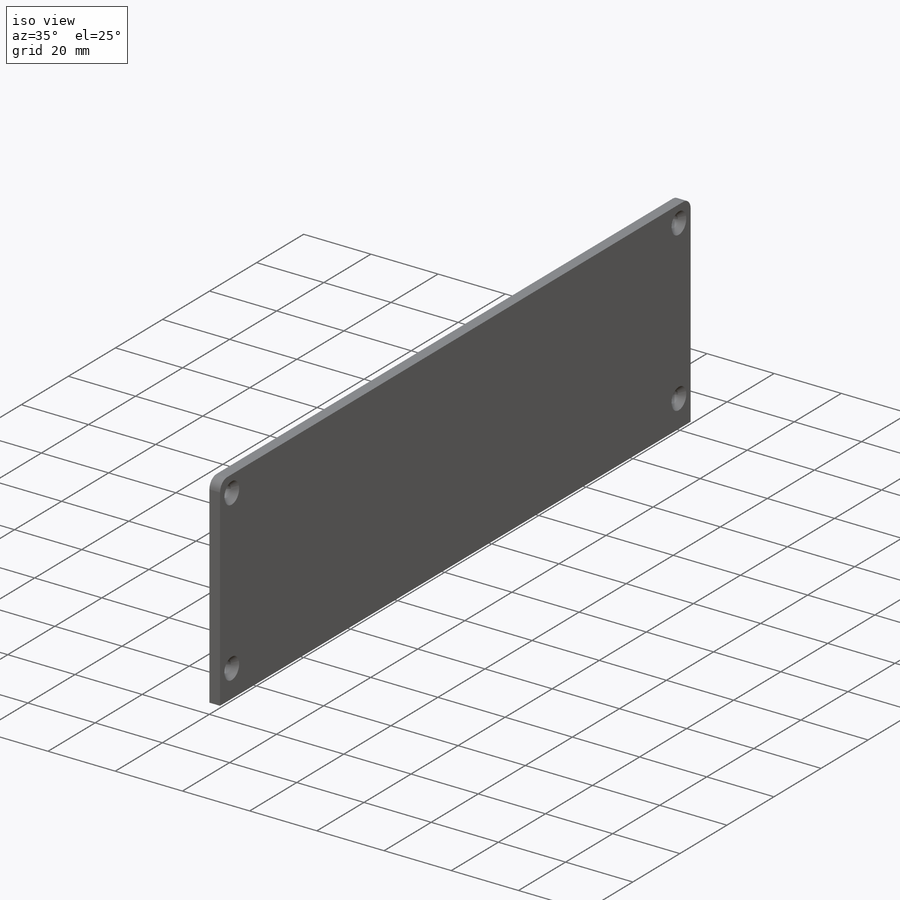
[diagram: iso view]
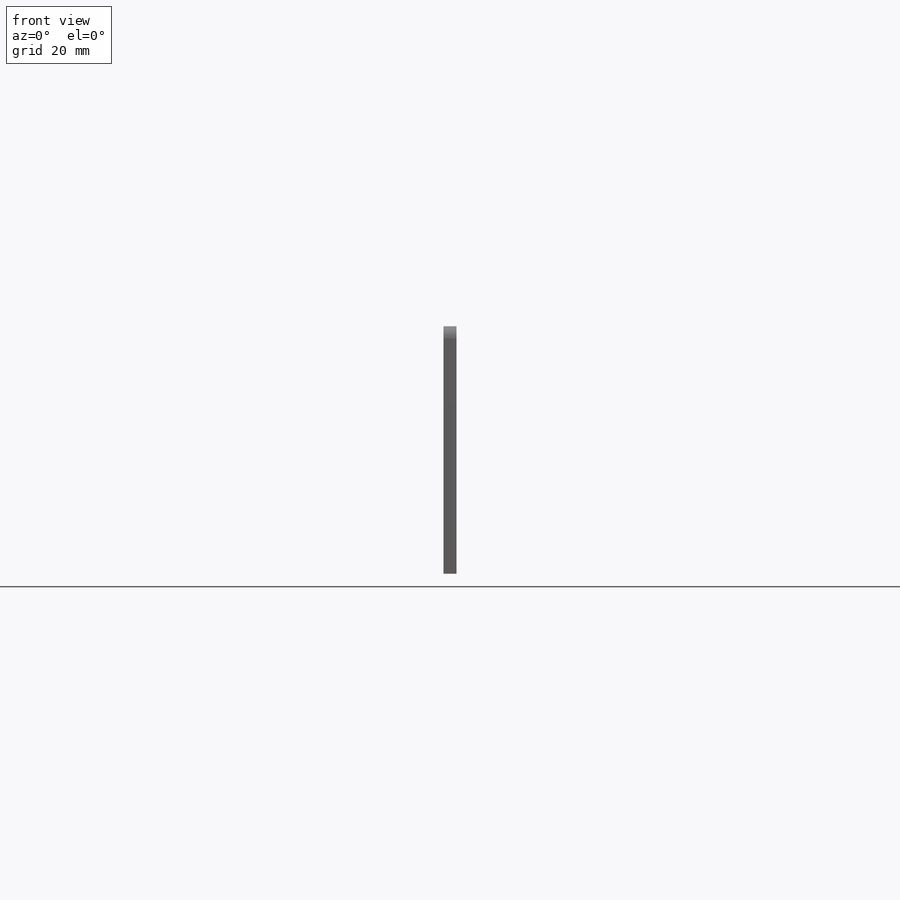
[diagram: front view]
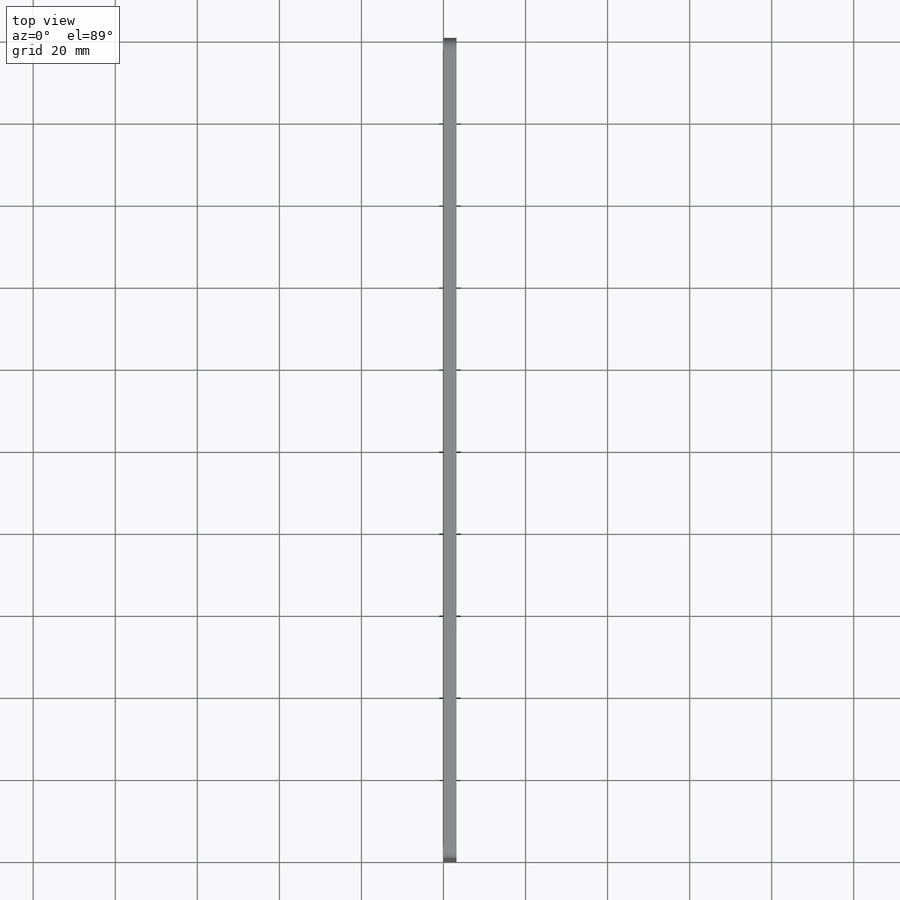
[diagram: top view]
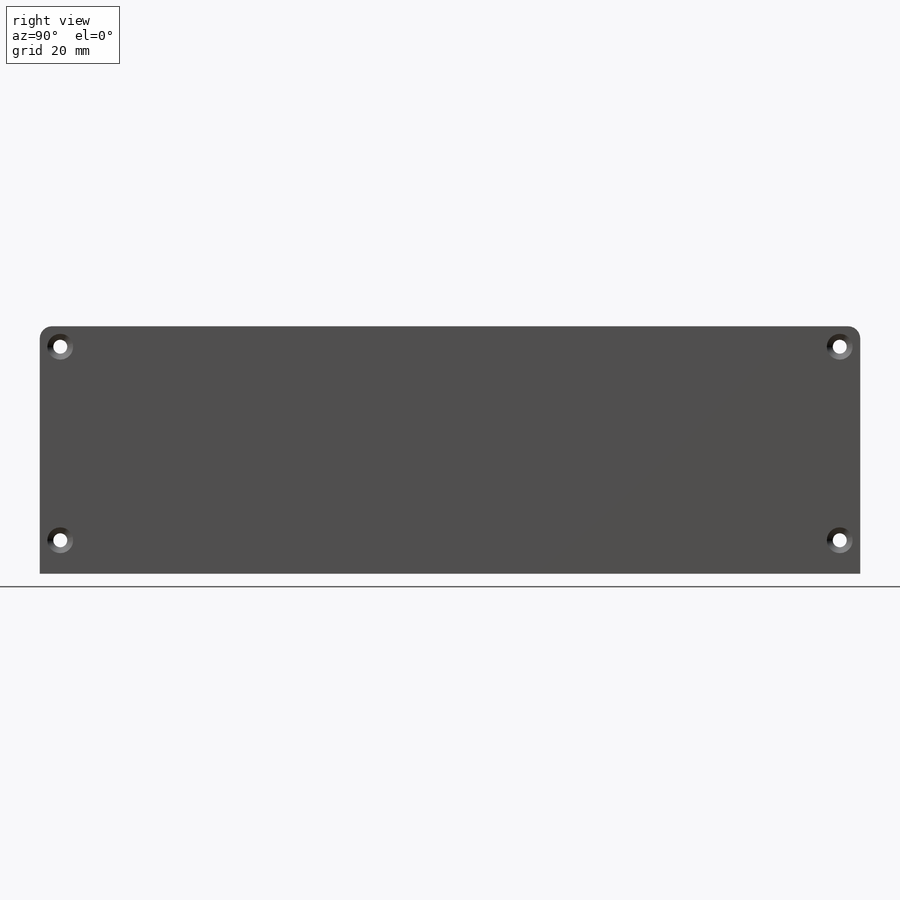
[diagram: right view]
SOLIDWORKS PART (.sldprt)
format: sldprt  version: not decoded by parser v0  size: 180,224 bytes
history: native  units: mm
features: sketch x3, material x1, extrude x1, hole x1, mirror x1 (+11 scaffold rows collapsed)
feature tree (18):
  scaffold x11  (default folders/planes/origin — collapsed)
  material  "Garolite (G-10/FR4)"
  sketch  "Sketch1"  dims[c1.D2=3.0mm c1.D1=300.0mm c2.D2=110.0mm c2.D3=13.0mm c2.D4=13.0mm c2.D5=90.0mm c2.D1=200.0mm c3.D2=44.0mm c3.D3=3.175mm c3.D4=44.0mm c3.D5=3.175mm c3.D6=10.0mm c3.D7=~20.252474mm c4.D2=20.0mm c4.D4=~37.072114mm c4.D3=60.35mm]
  extrude  "Boss-Extrude1"  Depth=3.175mm
  hole  "CSK for M3 Flat Head Machine Screw1"  Diameter=3.4mm Depth=3.175mm
  sketch  "Sketch3"  dims[D1=5.0mm D2=8.175mm D3=5.0mm]
  sketch  "Sketch2"  dims[hole-wizard template sketch: 59 standard entries collapsed; hole parameters above]
  mirror  "Mirror1"
decode coverage: 5 of 6 modeling features carry decoded parameters
note: ~ marks probable driven/reference dimensions
note: suppression state not decoded; provenance and decode notes live in map.json
